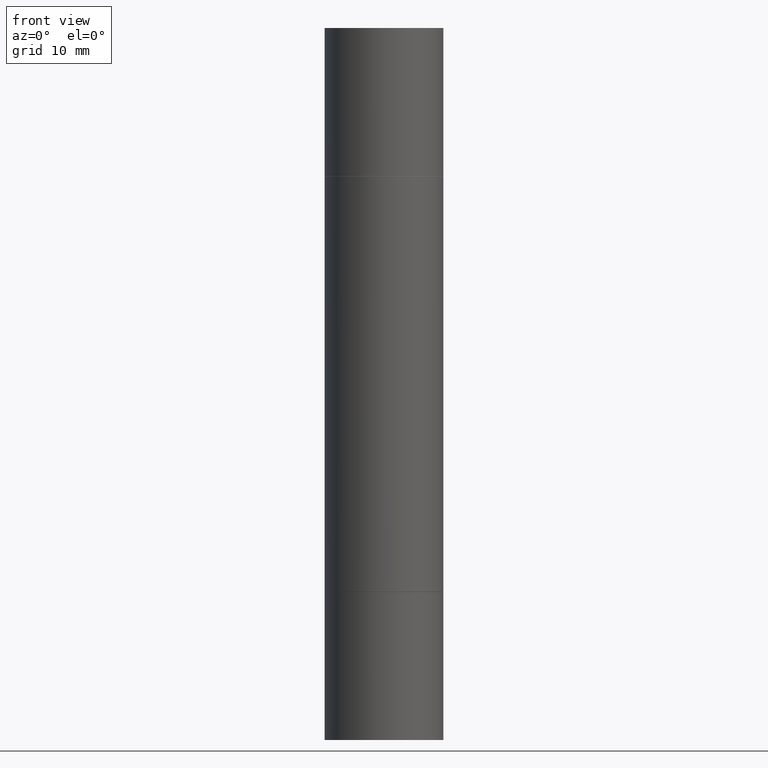
[diagram: clean part render]
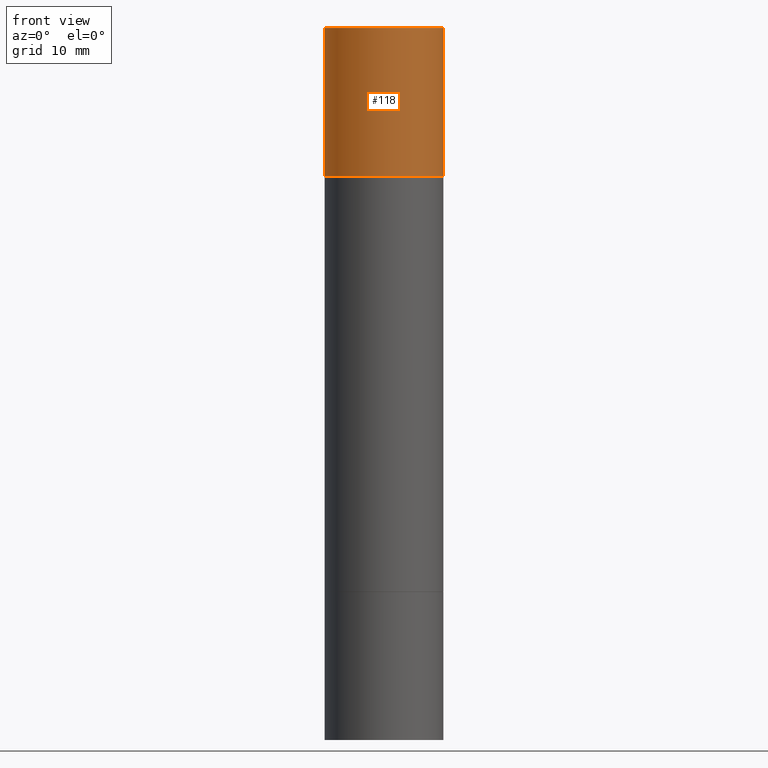
[diagram: same view with one face highlighted and labeled with its STEP entity id]
A machine part, front view. The second image highlights one B-rep face of the part: STEP entity #118.
In plain terms, the highlighted cylindrical surface (partial cylindrical patch) has radius 6.35 mm, axis along (-0, -0, -1).
Its self-contained STEP definition (entity closure, byte-faithful):
#14 = EDGE_CURVE ( 'NONE', #542, #660, #78, .T. ) ;
#20 = CARTESIAN_POINT ( 'NONE',  ( 0.000000000000000000, -1.047655762559234344E-14, -2.999999999999999112 ) ) ;
#22 = ORIENTED_EDGE ( 'NONE', *, *, #343, .T. ) ;
#47 = AXIS2_PLACEMENT_3D ( 'NONE', #416, #519, #350 ) ;
#48 = LINE ( 'NONE', #676, #599 ) ;
#66 = DIRECTION ( 'NONE',  ( -2.445468806185136877E-29, -3.492890411551753071E-15, -1.000000000000000000 ) ) ;
#78 = CIRCLE ( 'NONE', #47, 0.2500000000000000000 ) ;
#108 = CIRCLE ( 'NONE', #451, 0.2500000000000000000 ) ;
#118 = ADVANCED_FACE ( 'NONE', ( #504 ), #445, .T. ) ;
#152 = DIRECTION ( 'NONE',  ( -2.445468806185136877E-29, -3.492890411551753071E-15, -1.000000000000000000 ) ) ;
#183 = EDGE_CURVE ( 'NONE', #660, #503, #48, .T. ) ;
#184 = ORIENTED_EDGE ( 'NONE', *, *, #14, .F. ) ;
#213 = CARTESIAN_POINT ( 'NONE',  ( -0.2500000000000000000, 6.257098548958748880E-16, 1.092739197465709232E-15 ) ) ;
#222 = LINE ( 'NONE', #634, #272 ) ;
#254 = CARTESIAN_POINT ( 'NONE',  ( 0.2500000000000000000, -1.743627060358652092E-15, 1.092739197465705287E-15 ) ) ;
#272 = VECTOR ( 'NONE', #66, 39.37007874015748143 ) ;
#289 = ORIENTED_EDGE ( 'NONE', *, *, #642, .T. ) ;
#293 = EDGE_LOOP ( 'NONE', ( #184, #22, #289, #547 ) ) ;
#339 = AXIS2_PLACEMENT_3D ( 'NONE', #20, #441, #648 ) ;
#343 = EDGE_CURVE ( 'NONE', #542, #650, #222, .T. ) ;
#350 = DIRECTION ( 'NONE',  ( 1.000000000000000000, -6.982962677686266711E-15, 0.000000000000000000 ) ) ;
#416 = CARTESIAN_POINT ( 'NONE',  ( 7.336406418555409790E-29, 2.113609062914567177E-18, 1.092739197465705287E-15 ) ) ;
#441 = DIRECTION ( 'NONE',  ( -2.445468806185136597E-29, -3.492890411551752677E-15, -1.000000000000000000 ) ) ;
#445 = CYLINDRICAL_SURFACE ( 'NONE', #339, 0.2500000000000000000 ) ;
#451 = AXIS2_PLACEMENT_3D ( 'NONE', #463, #665, #455 ) ;
#455 = DIRECTION ( 'NONE',  ( 1.000000000000000000, -6.982962677686266711E-15, 0.000000000000000000 ) ) ;
#463 = CARTESIAN_POINT ( 'NONE',  ( 5.807988414689700538E-29, -2.180942898156930788E-15, -0.6249999999999988898 ) ) ;
#503 = VERTEX_POINT ( 'NONE', #508 ) ;
#504 = FACE_OUTER_BOUND ( 'NONE', #293, .T. ) ;
#508 = CARTESIAN_POINT ( 'NONE',  ( 0.2500000000000000000, -3.926683567578497071E-15, -0.6249999999999988898 ) ) ;
#519 = DIRECTION ( 'NONE',  ( 2.445468806185136597E-29, 3.492890411551752677E-15, 1.000000000000000000 ) ) ;
#542 = VERTEX_POINT ( 'NONE', #213 ) ;
#547 = ORIENTED_EDGE ( 'NONE', *, *, #183, .F. ) ;
#599 = VECTOR ( 'NONE', #152, 39.37007874015748143 ) ;
#634 = CARTESIAN_POINT ( 'NONE',  ( -0.2500000000000000000, -8.761433126149462132E-15, -2.999999999999999112 ) ) ;
#642 = EDGE_CURVE ( 'NONE', #650, #503, #108, .T. ) ;
#648 = DIRECTION ( 'NONE',  ( 1.000000000000000000, -6.982962677686270655E-15, 0.000000000000000000 ) ) ;
#650 = VERTEX_POINT ( 'NONE', #658 ) ;
#658 = CARTESIAN_POINT ( 'NONE',  ( -0.2500000000000000000, 6.257098548958748880E-16, -0.6249999999999988898 ) ) ;
#660 = VERTEX_POINT ( 'NONE', #254 ) ;
#665 = DIRECTION ( 'NONE',  ( 2.445468806185136597E-29, 3.492890411551752677E-15, 1.000000000000000000 ) ) ;
#676 = CARTESIAN_POINT ( 'NONE',  ( 0.2500000000000000000, -1.222229829501391170E-14, -2.999999999999999112 ) ) ;